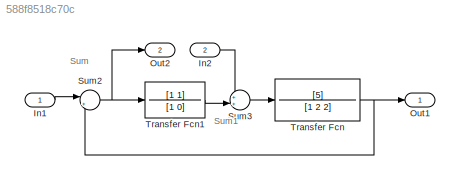
MODEL slx_588f8518c70c
KIND model
BLOCK [Inport] In1
  IconDisplay = Port number
BLOCK [Inport] In2
  IconDisplay = Port number
  Port = 2
BLOCK [Outport] Out1
  IconDisplay = Port number
BLOCK [Outport] Out2
  IconDisplay = Port number
  Port = 2
BLOCK [Sum] Sum2
  IconShape = round
  InputSameDT = off
  Inputs = |+-
  OutDataTypeStr = Inherit: Inherit via internal rule
  Ports = [2, 1]
  SaturateOnIntegerOverflow = off
BLOCK [Sum] Sum3
  IconShape = round
  InputSameDT = off
  Inputs = ++|
  OutDataTypeStr = Inherit: Inherit via internal rule
  Ports = [2, 1]
  SaturateOnIntegerOverflow = off
BLOCK [TransferFcn] Transfer Fcn
  Denominator = [1 2 2]
  Numerator = [5]
BLOCK [TransferFcn] Transfer Fcn1
  Denominator = [1 0]
  Numerator = [1 1]
ANNOTATION (root): Sum
ANNOTATION (root): Sum1
LINE In1:1 -> Sum2:1
LINE In2:1 -> Sum3:1
NET Sum2:1 -> Out2:1, Transfer Fcn1:1
LINE Sum3:1 -> Transfer Fcn:1
LINE Transfer Fcn1:1 -> Sum3:2
NET Transfer Fcn:1 -> Out1:1, Sum2:2
note: NET lines group one-source signal fan-out (src -> all destinations, sorted); 1:1 wires keep LINE
